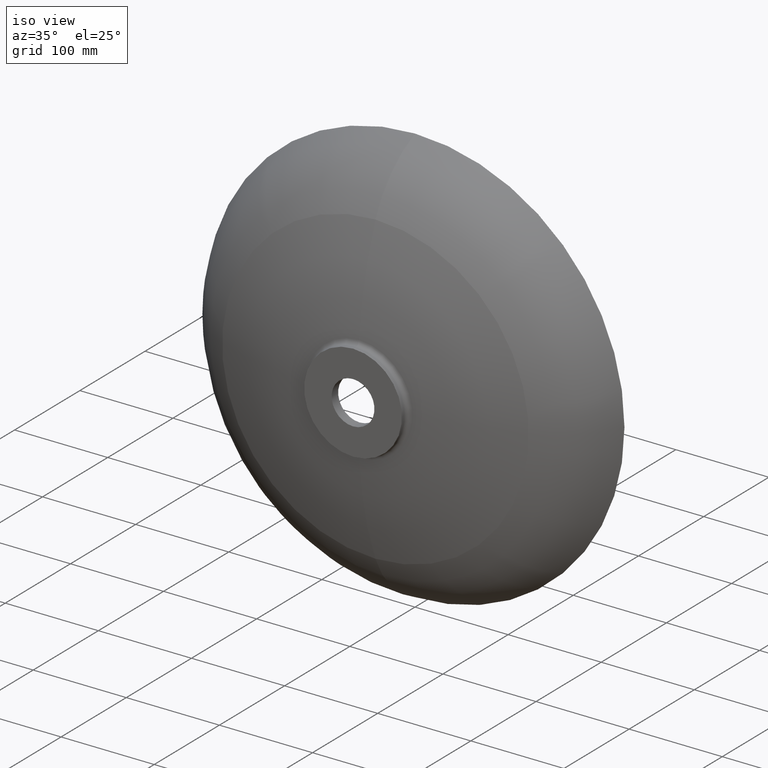
[diagram: clean part render]
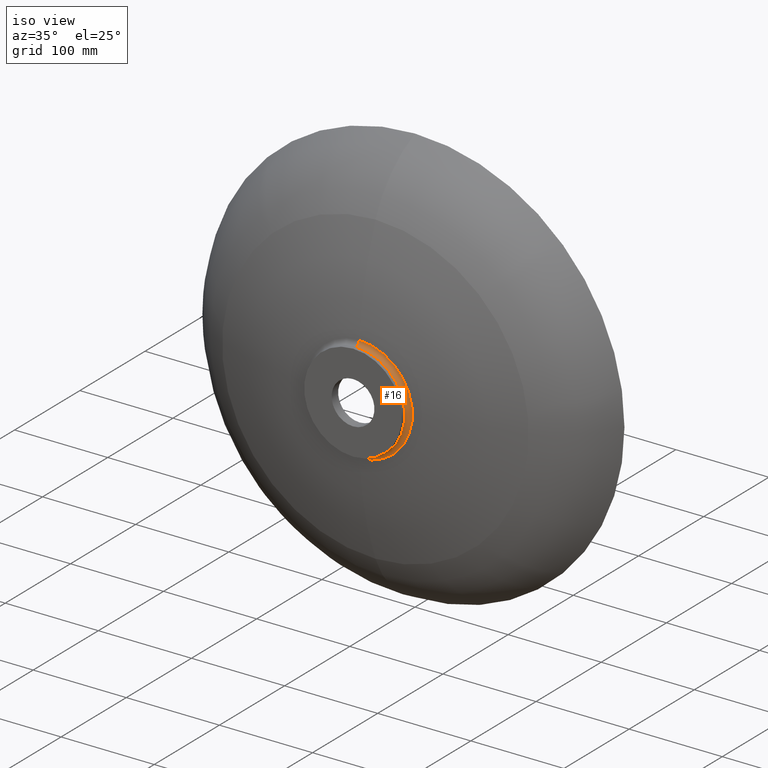
[diagram: same view with one face highlighted and labeled with its STEP entity id]
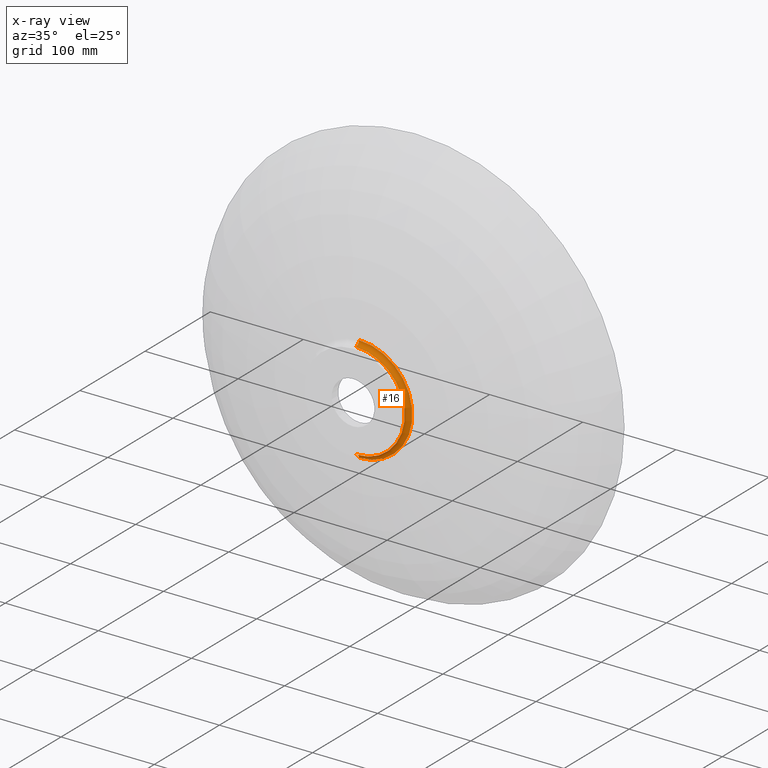
[diagram: x-ray of the same camera — body ghosted, the highlighted face saturated]
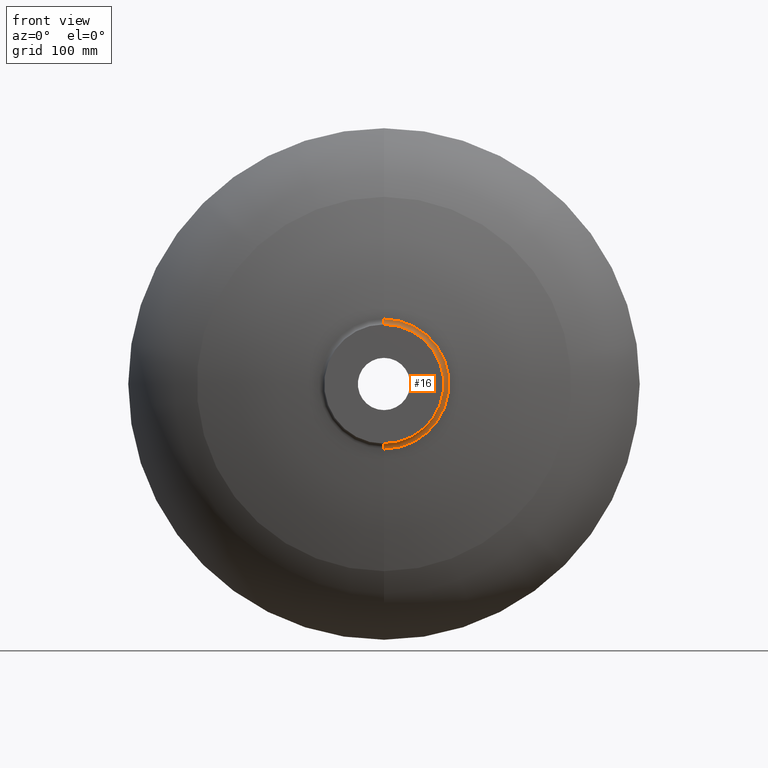
[diagram: same view with one face highlighted and labeled with its STEP entity id]
A machine part, iso view. The second image highlights one B-rep face of the part: STEP entity #16.
The next image is the same camera in x-ray: the body ghosted, the highlighted face saturated — about 0% of this face is hidden behind the body in this view.
A second angle (front view) of the same face is appended — the face is thin or edge-on in the first view.
In plain terms, the highlighted toroidal blend (fillet) surface has major radius 57.5 mm and minor (blend) radius 5 mm.
Its self-contained STEP definition (entity closure, byte-faithful):
#14 = ORIENTED_EDGE ( 'NONE', *, *, #477, .T. ) ;
#16 = ADVANCED_FACE ( 'NONE', ( #198 ), #508, .F. ) ;
#28 = VERTEX_POINT ( 'NONE', #359 ) ;
#30 = ORIENTED_EDGE ( 'NONE', *, *, #85, .F. ) ;
#42 = CARTESIAN_POINT ( 'NONE',  ( 2.785840080681896877E-14, -90.70580832891145917, -57.50000000000002842 ) ) ;
#59 = DIRECTION ( 'NONE',  ( 0.0000000000000000000, 0.0000000000000000000, 1.000000000000000000 ) ) ;
#79 = CARTESIAN_POINT ( 'NONE',  ( 2.081668171172168513E-14, -90.70580832891145917, 57.50000000000002842 ) ) ;
#85 = EDGE_CURVE ( 'NONE', #257, #532, #103, .T. ) ;
#103 = CIRCLE ( 'NONE', #228, 5.000000000000011546 ) ;
#104 = DIRECTION ( 'NONE',  ( -0.0000000000000000000, 1.000000000000000000, -0.0000000000000000000 ) ) ;
#105 = CARTESIAN_POINT ( 'NONE',  ( 2.753209500432569861E-14, -90.70580832891145917, -52.50000000000001421 ) ) ;
#112 = DIRECTION ( 'NONE',  ( 1.224646799147347784E-16, 0.0000000000000000000, -1.000000000000000000 ) ) ;
#161 = AXIS2_PLACEMENT_3D ( 'NONE', #206, #296, #166 ) ;
#164 = EDGE_LOOP ( 'NONE', ( #30, #361, #14, #307 ) ) ;
#166 = DIRECTION ( 'NONE',  ( 0.0000000000000000000, 0.0000000000000000000, 1.000000000000000000 ) ) ;
#198 = FACE_OUTER_BOUND ( 'NONE', #164, .T. ) ;
#204 = CARTESIAN_POINT ( 'NONE',  ( 3.440013347177337835E-14, -85.71664273050069482, -57.17102183714597885 ) ) ;
#206 = CARTESIAN_POINT ( 'NONE',  ( 2.135878279796443735E-14, -85.71664273050069482, 0.0000000000000000000 ) ) ;
#228 = AXIS2_PLACEMENT_3D ( 'NONE', #42, #482, #112 ) ;
#233 = CIRCLE ( 'NONE', #407, 5.000000000000011546 ) ;
#236 = DIRECTION ( 'NONE',  ( -1.000000000000000000, 0.0000000000000000000, 0.0000000000000000000 ) ) ;
#257 = VERTEX_POINT ( 'NONE', #204 ) ;
#285 = CIRCLE ( 'NONE', #161, 57.17102183714597885 ) ;
#286 = CIRCLE ( 'NONE', #503, 52.50000000000001421 ) ;
#296 = DIRECTION ( 'NONE',  ( -0.0000000000000000000, 1.000000000000000000, -0.0000000000000000000 ) ) ;
#297 = EDGE_CURVE ( 'NONE', #377, #257, #285, .T. ) ;
#307 = ORIENTED_EDGE ( 'NONE', *, *, #324, .T. ) ;
#324 = EDGE_CURVE ( 'NONE', #28, #532, #286, .T. ) ;
#328 = CARTESIAN_POINT ( 'NONE',  ( 2.081668171172168513E-14, -90.70580832891145917, 0.0000000000000000000 ) ) ;
#359 = CARTESIAN_POINT ( 'NONE',  ( 2.135878279796443735E-14, -90.70580832891145917, 52.50000000000001421 ) ) ;
#361 = ORIENTED_EDGE ( 'NONE', *, *, #297, .F. ) ;
#377 = VERTEX_POINT ( 'NONE', #449 ) ;
#407 = AXIS2_PLACEMENT_3D ( 'NONE', #79, #236, #59 ) ;
#449 = CARTESIAN_POINT ( 'NONE',  ( 2.135878279796443735E-14, -85.71664273050069482, 57.17102183714597885 ) ) ;
#457 = DIRECTION ( 'NONE',  ( -0.0000000000000000000, 1.000000000000000000, -0.0000000000000000000 ) ) ;
#476 = DIRECTION ( 'NONE',  ( 0.0000000000000000000, 0.0000000000000000000, 1.000000000000000000 ) ) ;
#477 = EDGE_CURVE ( 'NONE', #377, #28, #233, .T. ) ;
#482 = DIRECTION ( 'NONE',  ( 1.000000000000000000, 0.0000000000000000000, 1.224646799147353207E-16 ) ) ;
#485 = AXIS2_PLACEMENT_3D ( 'NONE', #328, #104, #521 ) ;
#503 = AXIS2_PLACEMENT_3D ( 'NONE', #537, #457, #476 ) ;
#508 = TOROIDAL_SURFACE ( 'NONE', #485, 57.50000000000002842, 5.000000000000011546 ) ;
#521 = DIRECTION ( 'NONE',  ( 0.0000000000000000000, 0.0000000000000000000, 1.000000000000000000 ) ) ;
#532 = VERTEX_POINT ( 'NONE', #105 ) ;
#537 = CARTESIAN_POINT ( 'NONE',  ( 2.135878279796443735E-14, -90.70580832891145917, 0.0000000000000000000 ) ) ;